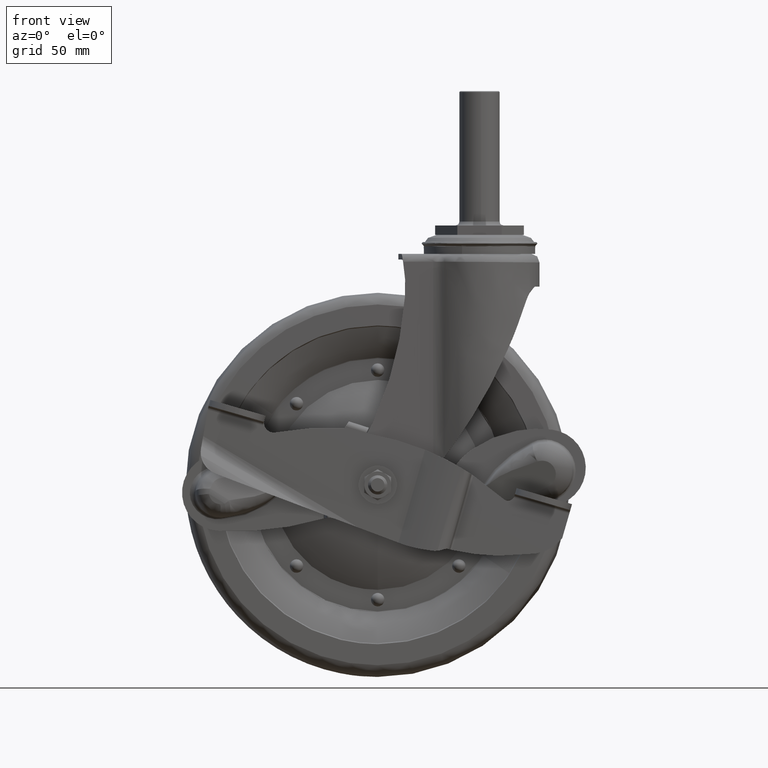
[diagram: clean part render]
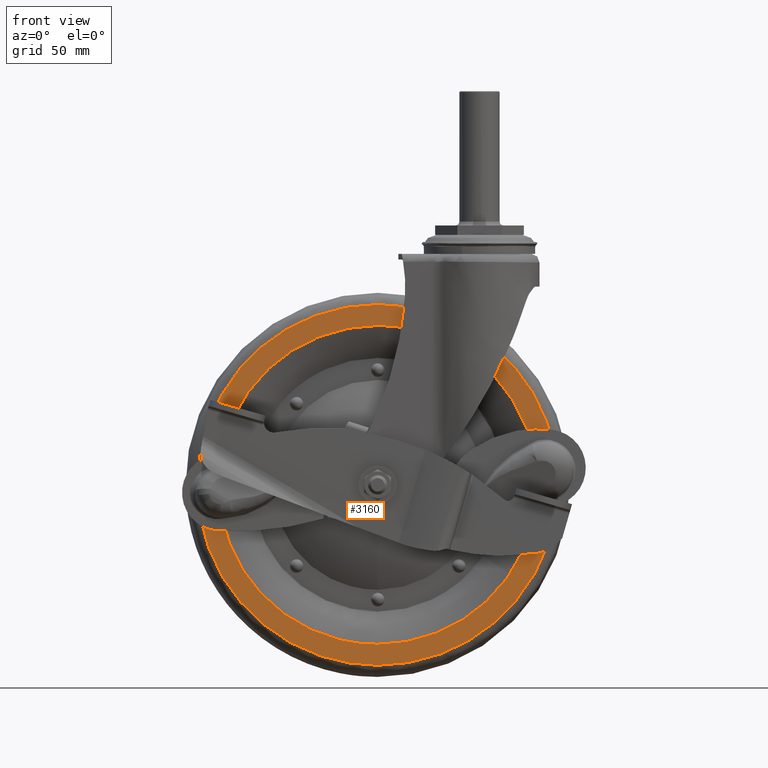
[diagram: same view with one face highlighted and labeled with its STEP entity id]
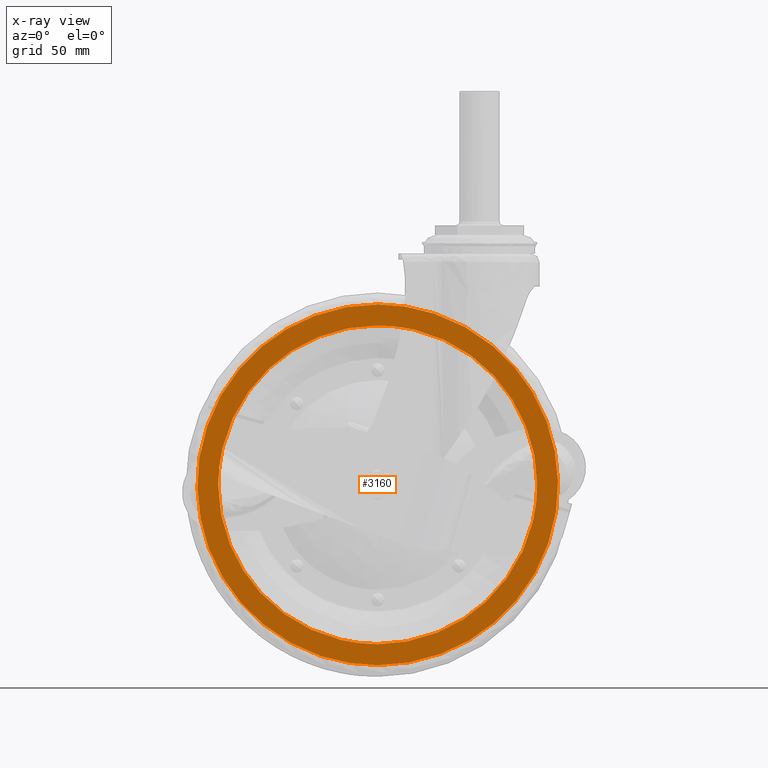
[diagram: x-ray of the same camera — body ghosted, the highlighted face saturated]
A machine part, front view. The second image highlights one B-rep face of the part: STEP entity #3160.
The next image is the same camera in x-ray: the body ghosted, the highlighted face saturated — about 0% of this face is hidden behind the body in this view.
In plain terms, the highlighted face is a freeform B-spline surface patch.
Its self-contained STEP definition (entity closure, byte-faithful):
#2880=CARTESIAN_POINT('',(39.225746669333653,-15.999999999999980,-112.805294918619690));
#2881=VERTEX_POINT('',#2880);
#2895=CARTESIAN_POINT('',(-53.0,-15.999999999999959,-224.287072003025090));
#2896=VERTEX_POINT('',#2895);
#2897=CARTESIAN_POINT('',(-53.0,-15.999999999999959,-224.287072003025090));
#2898=CARTESIAN_POINT('',(40.888775000124156,-15.999999999999970,-224.287072003001330));
#2899=CARTESIAN_POINT('',(40.888775000274201,-15.999999999999980,-130.398297002972810));
#2900=CARTESIAN_POINT('',(40.888775000288383,-15.999999999999979,-121.523194730137940));
#2901=CARTESIAN_POINT('',(39.225746669333660,-15.999999999999982,-112.805294918619640));
#2909=(BOUNDED_CURVE()B_SPLINE_CURVE(2,(#2897,#2898,#2899,#2900,#2901),.UNSPECIFIED.,.F.,.U.)B_SPLINE_CURVE_WITH_KNOTS((3,2,3),(0.0,0.250000000000000,0.282161366259548),.UNSPECIFIED.)CURVE()GEOMETRIC_REPRESENTATION_ITEM()RATIONAL_B_SPLINE_CURVE((1.0,0.707106781186548,1.0,0.962320615659211,0.934335795160169))REPRESENTATION_ITEM(''));
#2910=EDGE_CURVE('',#2896,#2881,#2909,.T.);
#2912=CARTESIAN_POINT('',(-145.225746669333690,-15.999999999999980,-147.991299087430410));
#2913=VERTEX_POINT('',#2912);
#2914=CARTESIAN_POINT('',(-145.225746669333690,-15.999999999999982,-147.991299087430380));
#2915=CARTESIAN_POINT('',(-130.671549599367860,-15.999999999999973,-224.287072003053740));
#2916=CARTESIAN_POINT('',(-53.0,-15.999999999999959,-224.287072003025090));
#2924=(BOUNDED_CURVE()B_SPLINE_CURVE(2,(#2914,#2915,#2916),.UNSPECIFIED.,.F.,.U.)B_SPLINE_CURVE_WITH_KNOTS((3,3),(0.782161366259548,1.0),.UNSPECIFIED.)CURVE()GEOMETRIC_REPRESENTATION_ITEM()RATIONAL_B_SPLINE_CURVE((0.934335795160169,0.744786165527337,1.0))REPRESENTATION_ITEM(''));
#2925=EDGE_CURVE('',#2913,#2896,#2924,.T.);
#2974=CARTESIAN_POINT('',(-53.0,-16.0,-36.509522003025069));
#2975=VERTEX_POINT('',#2974);
#2976=CARTESIAN_POINT('',(-53.0,-16.0,-36.509522003025069));
#2977=CARTESIAN_POINT('',(-146.888775000124160,-15.999999999999986,-36.509522003048730));
#2978=CARTESIAN_POINT('',(-146.888775000274190,-15.999999999999980,-130.398297003077400));
#2979=CARTESIAN_POINT('',(-146.888775000288380,-15.999999999999979,-139.273399275912110));
#2980=CARTESIAN_POINT('',(-145.225746669333690,-15.999999999999982,-147.991299087430380));
#2988=(BOUNDED_CURVE()B_SPLINE_CURVE(2,(#2976,#2977,#2978,#2979,#2980),.UNSPECIFIED.,.F.,.U.)B_SPLINE_CURVE_WITH_KNOTS((3,2,3),(0.500000000000000,0.750000000000000,0.782161366259548),.UNSPECIFIED.)CURVE()GEOMETRIC_REPRESENTATION_ITEM()RATIONAL_B_SPLINE_CURVE((1.0,0.707106781186548,1.0,0.962320615659211,0.934335795160169))REPRESENTATION_ITEM(''));
#2989=EDGE_CURVE('',#2975,#2913,#2988,.T.);
#2991=CARTESIAN_POINT('',(39.225746669333660,-15.999999999999982,-112.805294918619640));
#2992=CARTESIAN_POINT('',(24.671549599367857,-15.999999999999986,-36.509522002996448));
#2993=CARTESIAN_POINT('',(-53.0,-16.0,-36.509522003025069));
#3001=(BOUNDED_CURVE()B_SPLINE_CURVE(2,(#2991,#2992,#2993),.UNSPECIFIED.,.F.,.U.)B_SPLINE_CURVE_WITH_KNOTS((3,3),(0.282161366259548,0.500000000000000),.UNSPECIFIED.)CURVE()GEOMETRIC_REPRESENTATION_ITEM()RATIONAL_B_SPLINE_CURVE((0.934335795160169,0.744786165527337,1.0))REPRESENTATION_ITEM(''));
#3002=EDGE_CURVE('',#2881,#2975,#3001,.T.);
#3087=CARTESIAN_POINT('',(-156.260109529034390,-16.0,-27.130033744474410));
#3088=CARTESIAN_POINT('',(-156.260109529034390,-16.0,-233.666565298162110));
#3089=CARTESIAN_POINT('',(50.260114565223049,-16.0,-27.130033744474410));
#3090=CARTESIAN_POINT('',(50.260114565223049,-16.0,-233.666565298162110));
#3091=B_SPLINE_SURFACE_WITH_KNOTS('',1,1,((#3087,#3089),(#3088,#3090)),.UNSPECIFIED.,.F.,.F.,.U.,(2,2),(2,2),(0.0,206.536531553687690),(0.0,206.520224094257490),.UNSPECIFIED.);
#3092=ORIENTED_EDGE('',*,*,#2910,.T.);
#3093=ORIENTED_EDGE('',*,*,#3002,.T.);
#3094=ORIENTED_EDGE('',*,*,#2989,.T.);
#3095=ORIENTED_EDGE('',*,*,#2925,.T.);
#3096=EDGE_LOOP('',(#3092,#3093,#3094,#3095));
#3097=FACE_OUTER_BOUND('',#3096,.T.);
#3098=CARTESIAN_POINT('',(-53.0,-16.0,-47.398297003025057));
#3099=VERTEX_POINT('',#3098);
#3100=CARTESIAN_POINT('',(-135.999999987765790,-16.0,-130.398297003025110));
#3101=VERTEX_POINT('',#3100);
#3102=CARTESIAN_POINT('',(-53.0,-16.0,-47.398297003025057));
#3103=CARTESIAN_POINT('',(-135.999999993882880,-16.0,-47.398297003025064));
#3104=CARTESIAN_POINT('',(-135.999999987765790,-16.0,-130.398297003025110));
#3112=(BOUNDED_CURVE()B_SPLINE_CURVE(2,(#3102,#3103,#3104),.UNSPECIFIED.,.F.,.U.)B_SPLINE_CURVE_WITH_KNOTS((3,3),(0.500000000000000,0.750000000000000),.UNSPECIFIED.)CURVE()GEOMETRIC_REPRESENTATION_ITEM()RATIONAL_B_SPLINE_CURVE((1.0,0.707106781186547,1.0))REPRESENTATION_ITEM(''));
#3113=EDGE_CURVE('',#3099,#3101,#3112,.T.);
#3114=ORIENTED_EDGE('',*,*,#3113,.F.);
#3115=CARTESIAN_POINT('',(29.999999987765751,-16.0,-130.398297003025110));
#3116=VERTEX_POINT('',#3115);
#3117=CARTESIAN_POINT('',(29.999999987765751,-16.0,-130.398297003025110));
#3118=CARTESIAN_POINT('',(29.999999993882902,-16.000000000000004,-47.398297003025050));
#3119=CARTESIAN_POINT('',(-53.0,-16.0,-47.398297003025057));
#3127=(BOUNDED_CURVE()B_SPLINE_CURVE(2,(#3117,#3118,#3119),.UNSPECIFIED.,.F.,.U.)B_SPLINE_CURVE_WITH_KNOTS((3,3),(0.250000000000000,0.500000000000000),.UNSPECIFIED.)CURVE()GEOMETRIC_REPRESENTATION_ITEM()RATIONAL_B_SPLINE_CURVE((1.0,0.707106781186547,1.0))REPRESENTATION_ITEM(''));
#3128=EDGE_CURVE('',#3116,#3099,#3127,.T.);
#3129=ORIENTED_EDGE('',*,*,#3128,.F.);
#3130=CARTESIAN_POINT('',(-53.0,-16.0,-213.398297003025110));
#3131=VERTEX_POINT('',#3130);
#3132=CARTESIAN_POINT('',(-53.0,-16.0,-213.398297003025110));
#3133=CARTESIAN_POINT('',(29.999999993882852,-15.999999999999998,-213.398297003025020));
#3134=CARTESIAN_POINT('',(29.999999987765747,-16.000000000000004,-130.398297003025140));
#3142=(BOUNDED_CURVE()B_SPLINE_CURVE(2,(#3132,#3133,#3134),.UNSPECIFIED.,.F.,.U.)B_SPLINE_CURVE_WITH_KNOTS((3,3),(0.0,0.250000000000000),.UNSPECIFIED.)CURVE()GEOMETRIC_REPRESENTATION_ITEM()RATIONAL_B_SPLINE_CURVE((1.0,0.707106781186548,1.000000000000000))REPRESENTATION_ITEM(''));
#3143=EDGE_CURVE('',#3131,#3116,#3142,.T.);
#3144=ORIENTED_EDGE('',*,*,#3143,.F.);
#3145=CARTESIAN_POINT('',(-135.999999987765790,-16.0,-130.398297003025110));
#3146=CARTESIAN_POINT('',(-135.999999993882880,-16.0,-213.398297003025080));
#3147=CARTESIAN_POINT('',(-53.0,-16.0,-213.398297003025110));
#3155=(BOUNDED_CURVE()B_SPLINE_CURVE(2,(#3145,#3146,#3147),.UNSPECIFIED.,.F.,.U.)B_SPLINE_CURVE_WITH_KNOTS((3,3),(0.750000000000000,1.0),.UNSPECIFIED.)CURVE()GEOMETRIC_REPRESENTATION_ITEM()RATIONAL_B_SPLINE_CURVE((1.0,0.707106781186547,1.0))REPRESENTATION_ITEM(''));
#3156=EDGE_CURVE('',#3101,#3131,#3155,.T.);
#3157=ORIENTED_EDGE('',*,*,#3156,.F.);
#3158=EDGE_LOOP('',(#3114,#3129,#3144,#3157));
#3159=FACE_BOUND('',#3158,.T.);
#3160=ADVANCED_FACE('',(#3097,#3159),#3091,.T.);